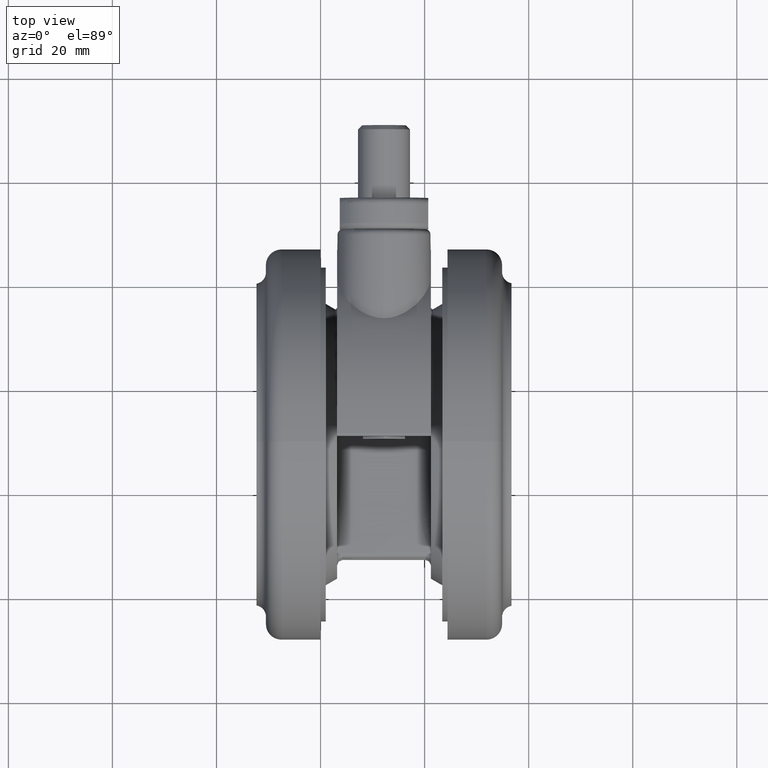
[diagram: clean part render]
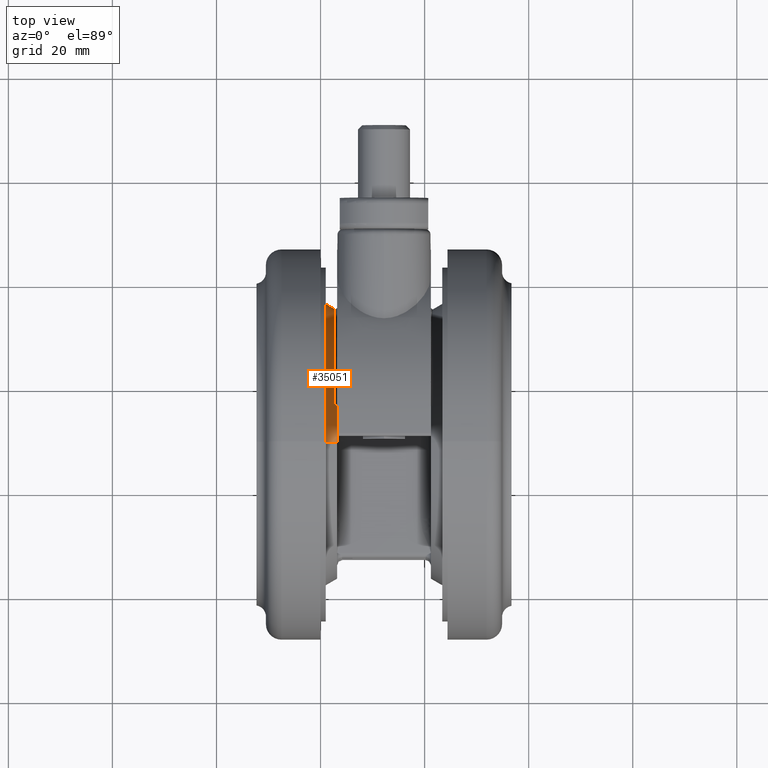
[diagram: same view with one face highlighted and labeled with its STEP entity id]
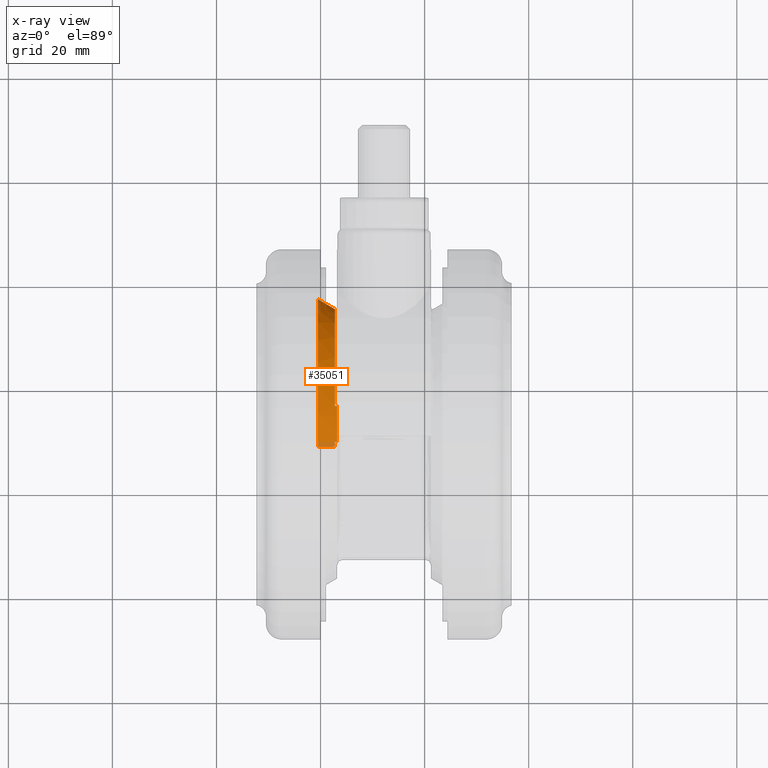
[diagram: x-ray of the same camera — body ghosted, the highlighted face saturated]
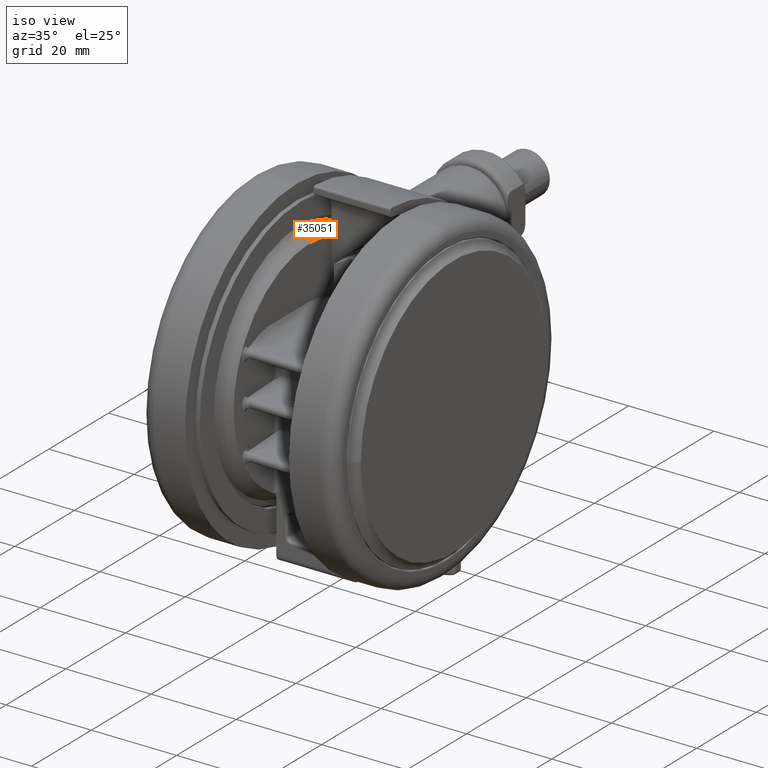
[diagram: same view with one face highlighted and labeled with its STEP entity id]
A machine part, top view. The second image highlights one B-rep face of the part: STEP entity #35051.
The next image is the same camera in x-ray: the body ghosted, the highlighted face saturated — about 5% of this face is hidden behind the body in this view.
A second angle (iso view) of the same face is appended — the face is thin or edge-on in the first view.
In plain terms, the highlighted conical surface has half-angle 30 deg.
Its self-contained STEP definition (entity closure, byte-faithful):
#992 = CARTESIAN_POINT ( 'NONE',  ( -6.999999999999925400, -24.81665217147547200, -33.49999999999985100 ) ) ;
#1531 = ORIENTED_EDGE ( 'NONE', *, *, #40882, .T. ) ;
#2344 = EDGE_LOOP ( 'NONE', ( #11183, #17456, #33935, #30437, #1531, #13466 ) ) ;
#2921 = CARTESIAN_POINT ( 'NONE',  ( 8.045092363449246800E-014, -25.78500000000000000, -33.49999999999985100 ) ) ;
#3146 = DIRECTION ( 'NONE',  ( 2.997602166487920300E-015, -1.000000000000000000, 0.0000000000000000000 ) ) ;
#3269 = DIRECTION ( 'NONE',  ( 0.0000000000000000000, -0.0000000000000000000, -1.000000000000000000 ) ) ;
#4753 = VERTEX_POINT ( 'NONE', #14594 ) ;
#6209 = CARTESIAN_POINT ( 'NONE',  ( 8.045092363449246800E-014, -25.78500000000000000, -33.49999999999985100 ) ) ;
#6891 = B_SPLINE_CURVE_WITH_KNOTS ( 'NONE', 3,
 ( #46360, #35259, #39024, #16614 ),
 .UNSPECIFIED., .F., .F.,
 ( 4, 4 ),
 ( 0.0000000000000000000, 0.0005247024933198872600 ),
 .UNSPECIFIED. ) ;
#8473 = CIRCLE ( 'NONE', #40206, 26.04480762113535200 ) ;
#8776 = CARTESIAN_POINT ( 'NONE',  ( -7.807197175087654000E-014, 26.04480762113538700, -33.94999999999994600 ) ) ;
#10538 = CARTESIAN_POINT ( 'NONE',  ( 8.711226635156226500E-014, -27.92000000000004100, -37.19792847415946800 ) ) ;
#10596 = EDGE_CURVE ( 'NONE', #11112, #34346, #6891, .T. ) ;
#11112 = VERTEX_POINT ( 'NONE', #992 ) ;
#11183 = ORIENTED_EDGE ( 'NONE', *, *, #36850, .F. ) ;
#11657 = DIRECTION ( 'NONE',  ( -2.997602166487920300E-015, 1.000000000000000000, 0.0000000000000000000 ) ) ;
#13005 = AXIS2_PLACEMENT_3D ( 'NONE', #47952, #25568, #3146 ) ;
#13135 = CARTESIAN_POINT ( 'NONE',  ( 0.0000000000000000000, 0.0000000000000000000, -33.94999999999994600 ) ) ;
#13466 = ORIENTED_EDGE ( 'NONE', *, *, #18759, .F. ) ;
#14002 = EDGE_CURVE ( 'NONE', #38024, #11112, #40695, .T. ) ;
#14594 = CARTESIAN_POINT ( 'NONE',  ( -8.369305248834285500E-014, 27.92000000000004100, -37.19792847415946800 ) ) ;
#15396 = CARTESIAN_POINT ( 'NONE',  ( 0.0000000000000000000, 0.0000000000000000000, -33.49999999999985100 ) ) ;
#16195 = LINE ( 'NONE', #36276, #46042 ) ;
#16614 = CARTESIAN_POINT ( 'NONE',  ( -6.999999999999924500, -25.08649046841647100, -33.94999999999994600 ) ) ;
#16919 = DIRECTION ( 'NONE',  ( -2.997602166487920300E-015, 1.000000000000000000, 0.0000000000000000000 ) ) ;
#17456 = ORIENTED_EDGE ( 'NONE', *, *, #14002, .T. ) ;
#18759 = EDGE_CURVE ( 'NONE', #21108, #4753, #31464, .T. ) ;
#19043 = AXIS2_PLACEMENT_3D ( 'NONE', #25685, #3269, #29472 ) ;
#21108 = VERTEX_POINT ( 'NONE', #10538 ) ;
#21754 = DIRECTION ( 'NONE',  ( 1.560033423201329900E-015, -0.5000000000000007800, -0.8660254037844381500 ) ) ;
#24097 = VERTEX_POINT ( 'NONE', #8776 ) ;
#25568 = DIRECTION ( 'NONE',  ( 0.0000000000000000000, -0.0000000000000000000, -1.000000000000000000 ) ) ;
#25685 = CARTESIAN_POINT ( 'NONE',  ( 0.0000000000000000000, 0.0000000000000000000, -37.19792847415946800 ) ) ;
#28931 = CARTESIAN_POINT ( 'NONE',  ( -6.999999999999924500, -25.08649046841647100, -33.94999999999994600 ) ) ;
#29331 = CONICAL_SURFACE ( 'NONE', #43071, 25.78500000000000000, 0.5235987755982995900 ) ;
#29472 = DIRECTION ( 'NONE',  ( 2.997602166487919900E-015, -1.000000000000000000, 0.0000000000000000000 ) ) ;
#30437 = ORIENTED_EDGE ( 'NONE', *, *, #41798, .T. ) ;
#30523 = FACE_OUTER_BOUND ( 'NONE', #2344, .T. ) ;
#31464 = CIRCLE ( 'NONE', #19043, 27.92000000000000200 ) ;
#33452 = LINE ( 'NONE', #2921, #35809 ) ;
#33935 = ORIENTED_EDGE ( 'NONE', *, *, #10596, .T. ) ;
#34084 = DIRECTION ( 'NONE',  ( 0.0000000000000000000, -0.0000000000000000000, -1.000000000000000000 ) ) ;
#34346 = VERTEX_POINT ( 'NONE', #28931 ) ;
#35051 = ADVANCED_FACE ( 'NONE', ( #30523 ), #29331, .T. ) ;
#35259 = CARTESIAN_POINT ( 'NONE',  ( -6.999999999999925400, -24.90662450972926200, -33.64998426274409800 ) ) ;
#35809 = VECTOR ( 'NONE', #21754, 1000.000000000000100 ) ;
#36276 = CARTESIAN_POINT ( 'NONE',  ( -7.729317186289102800E-014, 25.78500000000000000, -33.49999999999985100 ) ) ;
#36850 = EDGE_CURVE ( 'NONE', #38024, #21108, #33452, .T. ) ;
#38024 = VERTEX_POINT ( 'NONE', #6209 ) ;
#39024 = CARTESIAN_POINT ( 'NONE',  ( -6.999999999999924500, -24.99657033459845200, -33.79998443328788900 ) ) ;
#39325 = DIRECTION ( 'NONE',  ( -0.0000000000000000000, -0.0000000000000000000, -1.000000000000000000 ) ) ;
#40048 = DIRECTION ( 'NONE',  ( -1.498801083243962300E-015, 0.5000000000000007800, -0.8660254037844381500 ) ) ;
#40206 = AXIS2_PLACEMENT_3D ( 'NONE', #13135, #39325, #16919 ) ;
#40695 = CIRCLE ( 'NONE', #13005, 25.78500000000000000 ) ;
#40882 = EDGE_CURVE ( 'NONE', #24097, #4753, #16195, .T. ) ;
#41798 = EDGE_CURVE ( 'NONE', #34346, #24097, #8473, .T. ) ;
#43071 = AXIS2_PLACEMENT_3D ( 'NONE', #15396, #34084, #11657 ) ;
#46042 = VECTOR ( 'NONE', #40048, 1000.000000000000100 ) ;
#46360 = CARTESIAN_POINT ( 'NONE',  ( -6.999999999999925400, -24.81665217147547200, -33.49999999999985100 ) ) ;
#47952 = CARTESIAN_POINT ( 'NONE',  ( 0.0000000000000000000, 0.0000000000000000000, -33.49999999999985100 ) ) ;